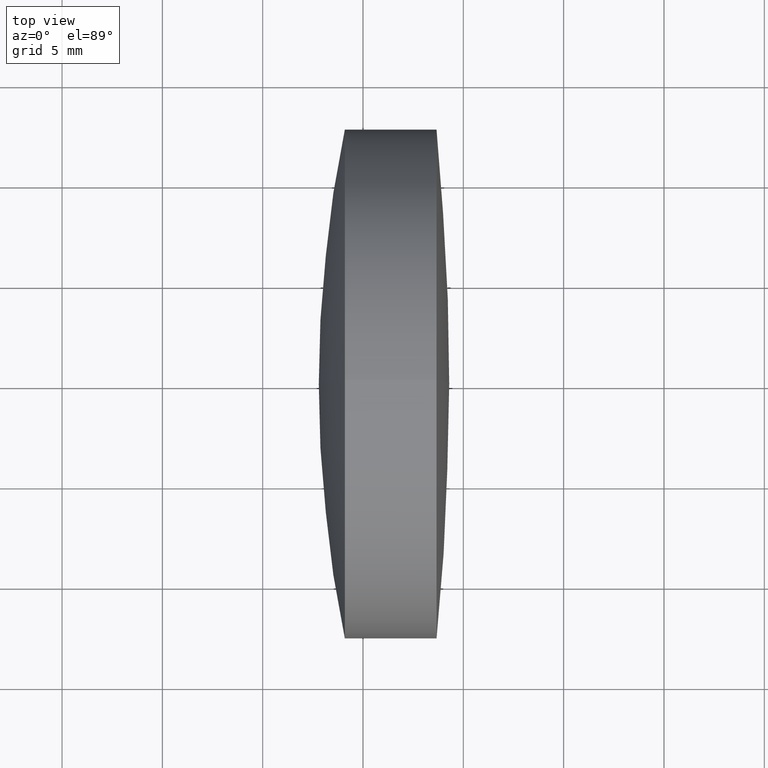
[diagram: clean part render]
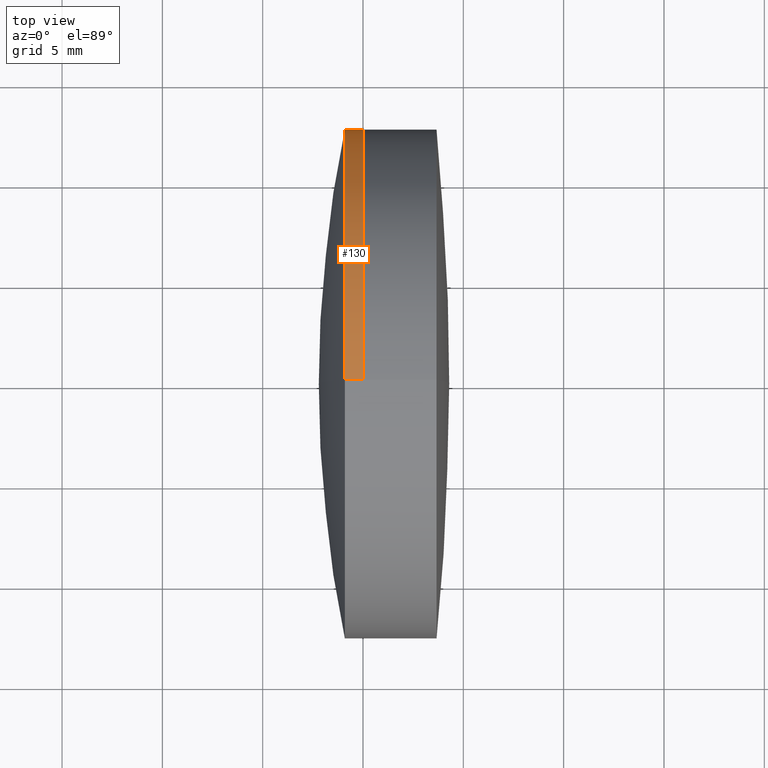
[diagram: same view with one face highlighted and labeled with its STEP entity id]
A machine part, top view. The second image highlights one B-rep face of the part: STEP entity #130.
In plain terms, the highlighted cylindrical surface (partial cylindrical patch) has radius 12.7 mm, axis along (-1, -0, -0).
Its self-contained STEP definition (entity closure, byte-faithful):
#5 = VERTEX_POINT ( 'NONE', #275 ) ;
#10 = VERTEX_POINT ( 'NONE', #242 ) ;
#20 = EDGE_CURVE ( 'NONE', #10, #5, #239, .T. ) ;
#29 = CYLINDRICAL_SURFACE ( 'NONE', #281, 12.69999999999999600 ) ;
#57 = EDGE_CURVE ( 'NONE', #186, #219, #144, .T. ) ;
#77 = DIRECTION ( 'NONE',  ( 0.0000000000000000000, 0.0000000000000000000, 1.000000000000000000 ) ) ;
#83 = DIRECTION ( 'NONE',  ( 0.0000000000000000000, 0.0000000000000000000, 1.000000000000000000 ) ) ;
#92 = EDGE_CURVE ( 'NONE', #5, #219, #279, .T. ) ;
#109 = FACE_OUTER_BOUND ( 'NONE', #190, .T. ) ;
#116 = CARTESIAN_POINT ( 'NONE',  ( 254.9957319130559200, 0.0000000000000000000, 0.0000000000000000000 ) ) ;
#128 = AXIS2_PLACEMENT_3D ( 'NONE', #116, #265, #276 ) ;
#130 = ADVANCED_FACE ( 'NONE', ( #109 ), #29, .T. ) ;
#143 = CARTESIAN_POINT ( 'NONE',  ( 161.8331716928335000, 0.0000000000000000000, 0.0000000000000000000 ) ) ;
#144 = LINE ( 'NONE', #297, #203 ) ;
#151 = ORIENTED_EDGE ( 'NONE', *, *, #198, .T. ) ;
#174 = CARTESIAN_POINT ( 'NONE',  ( 161.8331716928335000, 0.0000000000000000000, 12.69999999999999600 ) ) ;
#179 = DIRECTION ( 'NONE',  ( -1.000000000000000000, -0.0000000000000000000, -0.0000000000000000000 ) ) ;
#186 = VERTEX_POINT ( 'NONE', #334 ) ;
#190 = EDGE_LOOP ( 'NONE', ( #151, #339, #284, #285 ) ) ;
#191 = VECTOR ( 'NONE', #179, 1000.000000000000000 ) ;
#197 = CIRCLE ( 'NONE', #128, 12.69999999999999600 ) ;
#198 = EDGE_CURVE ( 'NONE', #10, #186, #197, .T. ) ;
#202 = CARTESIAN_POINT ( 'NONE',  ( 254.0934068323917900, 0.0000000000000000000, 0.0000000000000000000 ) ) ;
#203 = VECTOR ( 'NONE', #268, 1000.000000000000000 ) ;
#219 = VERTEX_POINT ( 'NONE', #241 ) ;
#229 = DIRECTION ( 'NONE',  ( -1.000000000000000000, -0.0000000000000000000, -0.0000000000000000000 ) ) ;
#239 = LINE ( 'NONE', #174, #191 ) ;
#241 = CARTESIAN_POINT ( 'NONE',  ( 254.0934068323917900, 1.555301434917140400E-015, -12.70000000000001900 ) ) ;
#242 = CARTESIAN_POINT ( 'NONE',  ( 254.9957319130559200, 0.0000000000000000000, 12.69999999999999600 ) ) ;
#265 = DIRECTION ( 'NONE',  ( -1.000000000000000000, -0.0000000000000000000, -0.0000000000000000000 ) ) ;
#268 = DIRECTION ( 'NONE',  ( -1.000000000000000000, -0.0000000000000000000, -0.0000000000000000000 ) ) ;
#275 = CARTESIAN_POINT ( 'NONE',  ( 254.0934068323917900, 0.0000000000000000000, 12.70000000000001500 ) ) ;
#276 = DIRECTION ( 'NONE',  ( 0.0000000000000000000, 0.0000000000000000000, 1.000000000000000000 ) ) ;
#279 = CIRCLE ( 'NONE', #310, 12.69999999999999400 ) ;
#281 = AXIS2_PLACEMENT_3D ( 'NONE', #143, #331, #77 ) ;
#284 = ORIENTED_EDGE ( 'NONE', *, *, #92, .F. ) ;
#285 = ORIENTED_EDGE ( 'NONE', *, *, #20, .F. ) ;
#297 = CARTESIAN_POINT ( 'NONE',  ( 161.8331716928335000, 1.555301434917138000E-015, -12.69999999999999600 ) ) ;
#310 = AXIS2_PLACEMENT_3D ( 'NONE', #202, #229, #83 ) ;
#331 = DIRECTION ( 'NONE',  ( -1.000000000000000000, -0.0000000000000000000, -0.0000000000000000000 ) ) ;
#334 = CARTESIAN_POINT ( 'NONE',  ( 254.9957319130559200, 1.555301434917138000E-015, -12.69999999999999600 ) ) ;
#339 = ORIENTED_EDGE ( 'NONE', *, *, #57, .T. ) ;